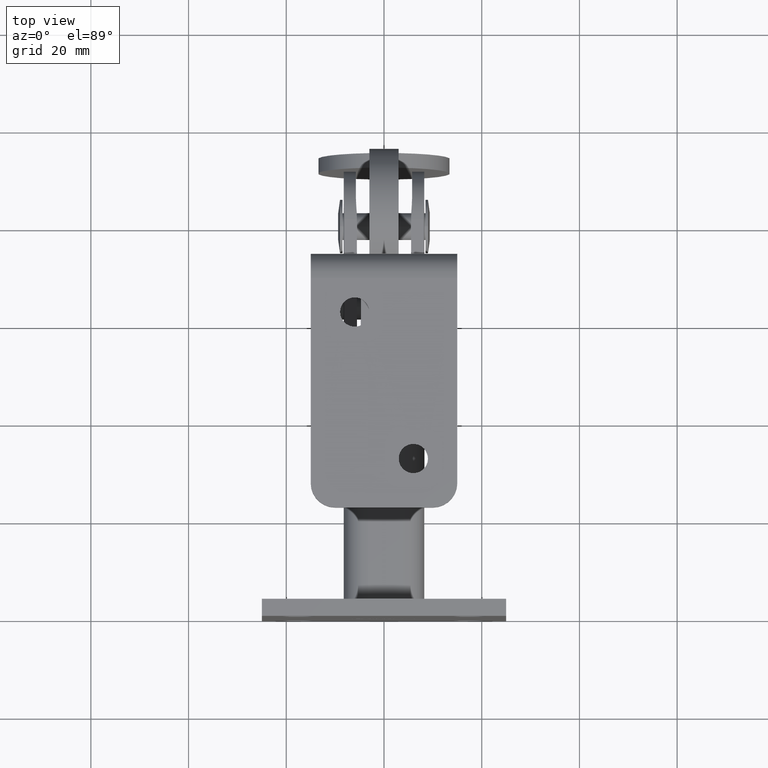
[diagram: clean part render]
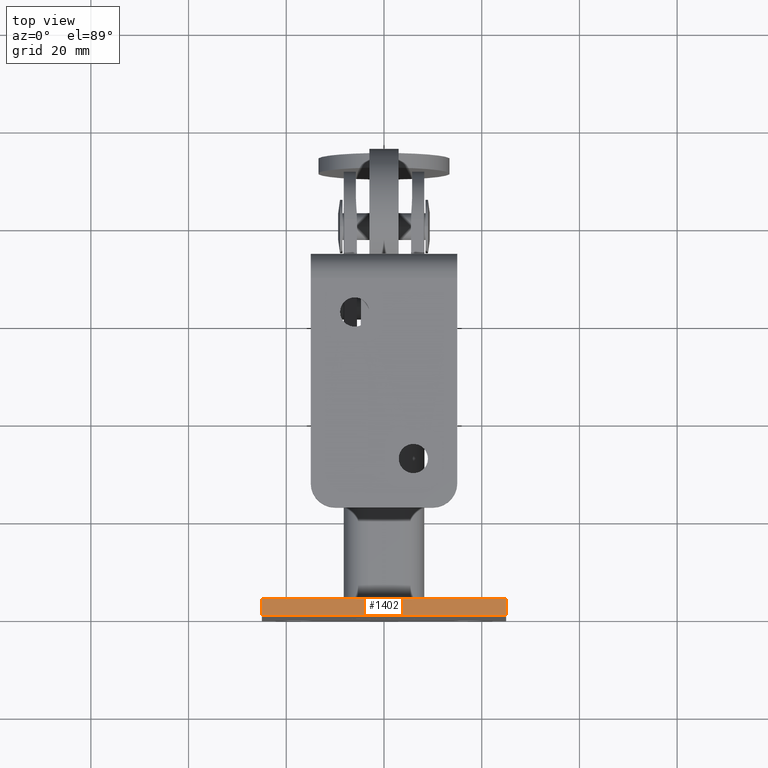
[diagram: same view with one face highlighted and labeled with its STEP entity id]
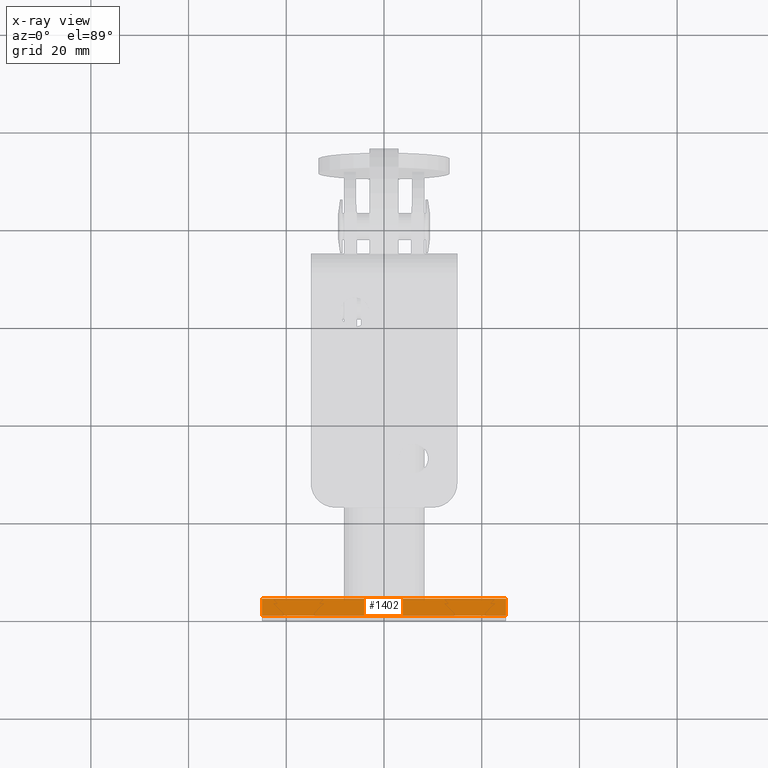
[diagram: x-ray of the same camera — body ghosted, the highlighted face saturated]
A machine part, top view. The second image highlights one B-rep face of the part: STEP entity #1402.
The next image is the same camera in x-ray: the body ghosted, the highlighted face saturated — about 0% of this face is hidden behind the body in this view.
In plain terms, the highlighted planar face has unit normal (0, 0, -1).
Its self-contained STEP definition (entity closure, byte-faithful):
#307 = EDGE_LOOP ( 'NONE', ( #4181, #7321, #7475, #7687 ) ) ;
#430 = CARTESIAN_POINT ( 'NONE',  ( -24.99999999999998900, 3.500000000000000000, 32.50000000000000000 ) ) ;
#686 = LINE ( 'NONE', #3138, #3088 ) ;
#1402 = ADVANCED_FACE ( 'NONE', ( #7706 ), #6527, .F. ) ;
#2364 = AXIS2_PLACEMENT_3D ( 'NONE', #430, #11663, #8509 ) ;
#3088 = VECTOR ( 'NONE', #8185, 1000.000000000000000 ) ;
#3138 = CARTESIAN_POINT ( 'NONE',  ( -24.99999999999998900, 3.500000000000000000, 32.50000000000000000 ) ) ;
#3423 = CARTESIAN_POINT ( 'NONE',  ( -24.99999999999998900, 0.0000000000000000000, 32.50000000000000000 ) ) ;
#4036 = CARTESIAN_POINT ( 'NONE',  ( -24.99999999999998900, 3.500000000000000000, 32.50000000000000000 ) ) ;
#4133 = DIRECTION ( 'NONE',  ( 1.000000000000000000, 0.0000000000000000000, 0.0000000000000000000 ) ) ;
#4181 = ORIENTED_EDGE ( 'NONE', *, *, #8684, .T. ) ;
#4705 = CARTESIAN_POINT ( 'NONE',  ( -24.99999999999998900, 0.0000000000000000000, 32.50000000000000000 ) ) ;
#4959 = LINE ( 'NONE', #4705, #7657 ) ;
#5289 = LINE ( 'NONE', #10719, #12631 ) ;
#5389 = DIRECTION ( 'NONE',  ( 1.000000000000000000, 0.0000000000000000000, 0.0000000000000000000 ) ) ;
#5838 = VERTEX_POINT ( 'NONE', #3423 ) ;
#6078 = VECTOR ( 'NONE', #4133, 1000.000000000000000 ) ;
#6141 = VERTEX_POINT ( 'NONE', #13125 ) ;
#6296 = VERTEX_POINT ( 'NONE', #8269 ) ;
#6422 = DIRECTION ( 'NONE',  ( -0.0000000000000000000, -1.000000000000000000, -0.0000000000000000000 ) ) ;
#6527 = PLANE ( 'NONE',  #2364 ) ;
#7321 = ORIENTED_EDGE ( 'NONE', *, *, #12453, .F. ) ;
#7475 = ORIENTED_EDGE ( 'NONE', *, *, #11684, .F. ) ;
#7657 = VECTOR ( 'NONE', #5389, 1000.000000000000000 ) ;
#7687 = ORIENTED_EDGE ( 'NONE', *, *, #11593, .T. ) ;
#7706 = FACE_OUTER_BOUND ( 'NONE', #307, .T. ) ;
#7736 = VERTEX_POINT ( 'NONE', #10847 ) ;
#8185 = DIRECTION ( 'NONE',  ( -0.0000000000000000000, -1.000000000000000000, -0.0000000000000000000 ) ) ;
#8269 = CARTESIAN_POINT ( 'NONE',  ( -24.99999999999998900, 3.500000000000000000, 32.50000000000000000 ) ) ;
#8509 = DIRECTION ( 'NONE',  ( -1.000000000000000000, 0.0000000000000000000, -0.0000000000000000000 ) ) ;
#8684 = EDGE_CURVE ( 'NONE', #5838, #6141, #4959, .T. ) ;
#9443 = LINE ( 'NONE', #4036, #6078 ) ;
#10719 = CARTESIAN_POINT ( 'NONE',  ( 25.00000000000001100, 3.500000000000000000, 32.50000000000000000 ) ) ;
#10847 = CARTESIAN_POINT ( 'NONE',  ( 25.00000000000001100, 3.500000000000000000, 32.50000000000000000 ) ) ;
#11593 = EDGE_CURVE ( 'NONE', #6296, #5838, #686, .T. ) ;
#11663 = DIRECTION ( 'NONE',  ( 0.0000000000000000000, 0.0000000000000000000, -1.000000000000000000 ) ) ;
#11684 = EDGE_CURVE ( 'NONE', #6296, #7736, #9443, .T. ) ;
#12453 = EDGE_CURVE ( 'NONE', #7736, #6141, #5289, .T. ) ;
#12631 = VECTOR ( 'NONE', #6422, 1000.000000000000000 ) ;
#13125 = CARTESIAN_POINT ( 'NONE',  ( 25.00000000000001100, 0.0000000000000000000, 32.50000000000000000 ) ) ;